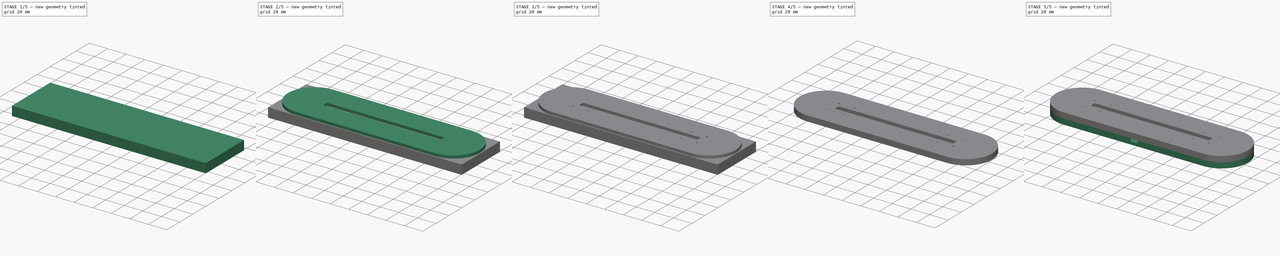
[diagram: build sequence overview — one tinted view per stage of 5, left to right]
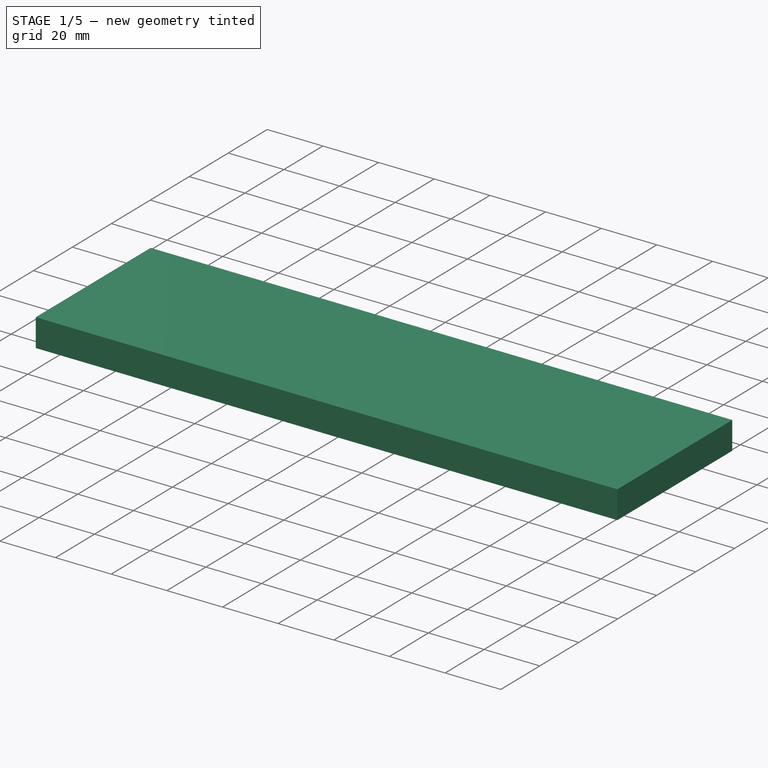
[diagram: stage 1 of 5 — iso view after this stage's code; geometry added in this stage tinted green]
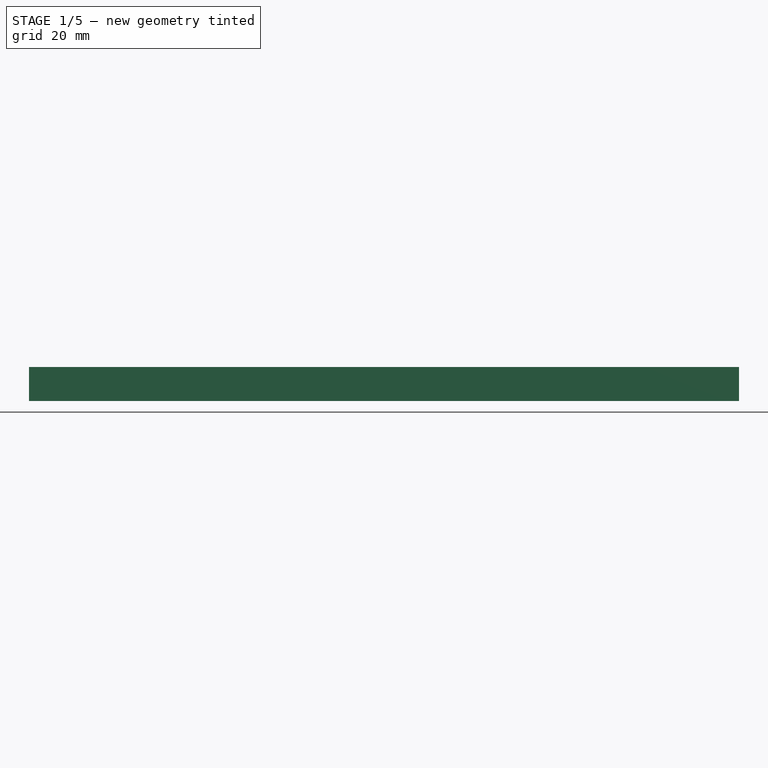
[diagram: stage 1 of 5 — front view after this stage's code; geometry added in this stage tinted green]
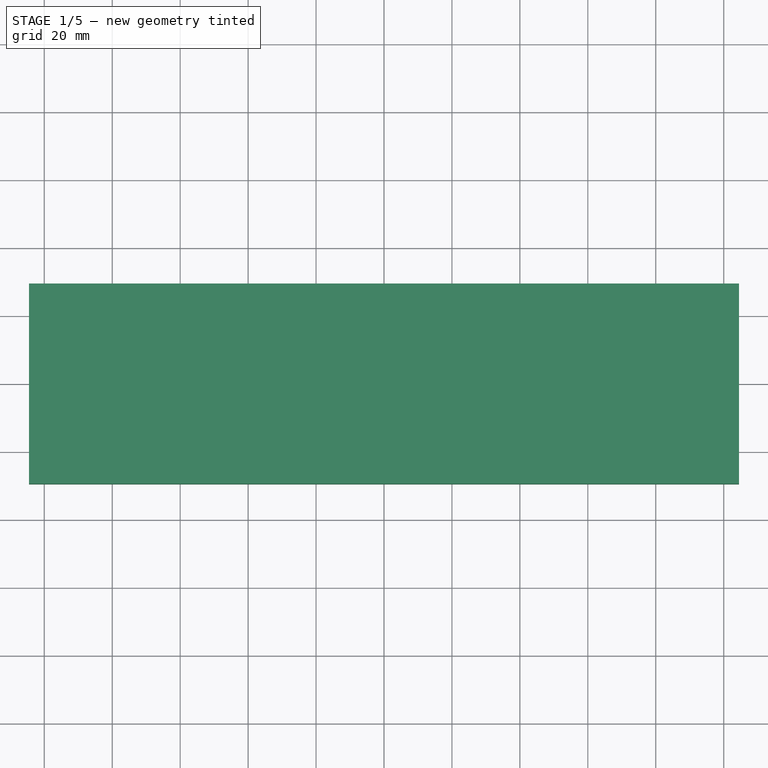
[diagram: stage 1 of 5 — top view after this stage's code; geometry added in this stage tinted green]
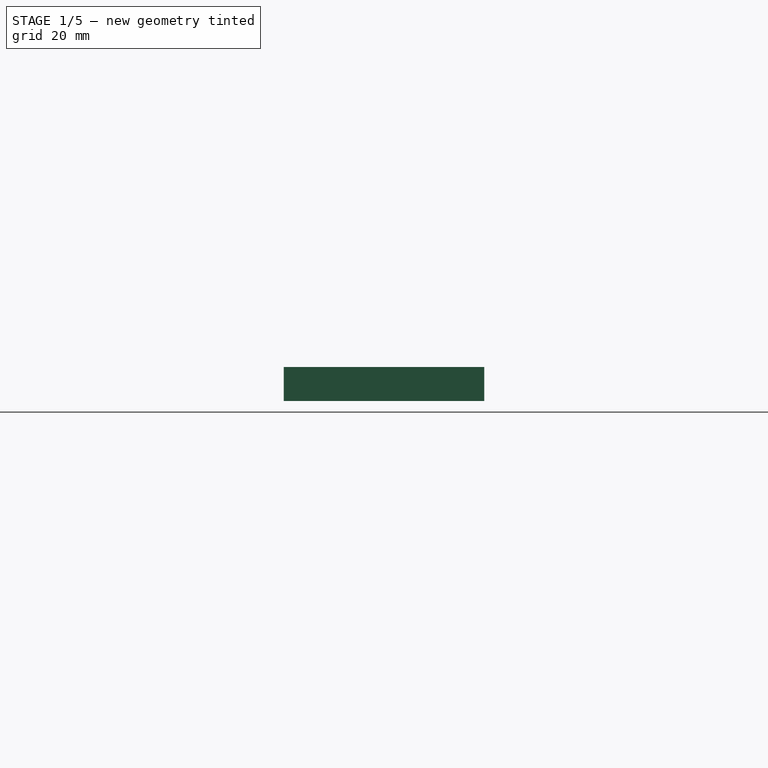
[diagram: stage 1 of 5 — right view after this stage's code; geometry added in this stage tinted green]
FCSTD DOCUMENT  (FreeCAD 0.17R13541 (Git))
Label: Acry-Base-18-Tiny-base-slots-Skate-tight-holes--lasersect
License: All rights reserved
LicenseURL: http://en.wikipedia.org/wiki/All_rights_reserved
objects: Sketcher::SketchObject×7, PartDesign::Pocket×4, Part::Feature×4, PartDesign::Pad×3, PartDesign::PolarPattern×3, Part::Box×3, Part::MultiCommon×3, Part::Cut×3, PartDesign::Body×1, App::Part×1, App::DocumentObjectGroup×1
note: 38 computed .brp shape members not serialized (recipe doc carries the construction recipe); baked Part::Feature solids carry a one-line shape summary decoded from their .brp

FEATURE [Sketcher::SketchObject] Sketch
  MapMode = 5
  Support = -> [XY_Plane001]
  sketch-geometry (5):
    g0: ArcOfCircle CenterX=-75 CenterY=0 CenterZ=0 NormalX=0 NormalY=0 NormalZ=1 AngleXU=0 Radius=28.5 StartAngle=1.5708 EndAngle=4.71239
    g1: ArcOfCircle CenterX=75 CenterY=1e-11 CenterZ=0 NormalX=0 NormalY=0 NormalZ=1 AngleXU=0 Radius=28.5 StartAngle=4.71239 EndAngle=7.85398
    g2: LineSegment StartX=-75 StartY=-28.5 StartZ=0 EndX=75 EndY=-28.5 EndZ=0
    g3: LineSegment StartX=-75 StartY=28.5 StartZ=0 EndX=75 EndY=28.5 EndZ=0
    g4: GeomPoint X=0 Y=28.5 Z=0
  constraints (12):
    c: Tangent(g0,g3) = 1.5708
    c: Tangent(g0,g2) = -1.5708
    c: Tangent(g2,g1) = -1.5708
    c: Tangent(g3,g1) = 1.5708
    c: Horizontal(g2)
    c: Equal(g0,g1)
    c: Distance(g1,g1) = 57
    c: Distance(g0,g1) = 150
    c: PointOnObject(g4,g3)
    c: Symmetric(g1,g0,g4)
    c: PointOnObject(g4,g-2)
    c: PointOnObject(g0,g-1)
FEATURE [PartDesign::Pad] Pad
  Length = 6
  Length2 = 100
  Profile = -> Sketch
  Type = 0
FEATURE [Sketcher::SketchObject] Sketch001
  MapMode = 5
  Placement = pos=(0,0,6) rot=(0,0,1;0rad)
  Support = -> [Pad]
  sketch-geometry (5):
    g0: ArcOfCircle CenterX=-62.5 CenterY=0 CenterZ=0 NormalX=0 NormalY=0 NormalZ=1 AngleXU=0 Radius=6 StartAngle=1.5708 EndAngle=4.71239
    g1: ArcOfCircle CenterX=62.5 CenterY=-1e-12 CenterZ=0 NormalX=0 NormalY=0 NormalZ=1 AngleXU=0 Radius=6 StartAngle=4.71239 EndAngle=7.85398
    g2: LineSegment StartX=-62.5 StartY=-6 StartZ=0 EndX=62.5 EndY=-6 EndZ=0
    g3: LineSegment StartX=-62.5 StartY=6 StartZ=0 EndX=62.5 EndY=6 EndZ=0
    g4: GeomPoint X=0 Y=6 Z=0
  constraints (12):
    c: Tangent(g0,g3) = 1.5708
    c: Tangent(g0,g2) = -1.5708
    c: Tangent(g2,g1) = -1.5708
    c: Tangent(g3,g1) = 1.5708
    c: Horizontal(g2)
    c: Equal(g0,g1)
    c: Distance(g3) = 125
    c: Distance(g1,g1) = 12
    c: PointOnObject(g4,g3)
    c: Symmetric(g1,g0,g4)
    c: PointOnObject(g4,g-2)
    c: PointOnObject(g0,g-1)
FEATURE [PartDesign::Pocket] Pocket
  BaseFeature = -> Pad
  Length = 3
  Length2 = 100
  Profile = -> Sketch001
  Type = 0
FEATURE [PartDesign::Body] Body
  Group = -> [Sketch,Pad,Sketch001,Pocket,Sketch002,Pocket001,Sketch003,Pocket002,Sketch004,Pad001,Sketch005,Pad002,Sketch006,Pocket003,PolarPattern,PolarPattern001,PolarPattern002]
  Origin = -> Origin001
  Tip = -> PolarPattern002
FEATURE [App::Part] Part
  Group = -> [Body]
  License = CC BY 3.0
  LicenseURL = http://creativecommons.org/licenses/by/3.0/
  Origin = -> Origin
FEATURE [Part::Box] box_bottom_half_0
  AttacherType = Attacher::AttachEngine3D
  Height = 7
  Length = 209
  Placement = pos=(-104.5,-29.5,-1) rot=(0,0,1;0rad)
  Width = 59
FEATURE [Part::Box] box_bottom_half_2
  AttacherType = Attacher::AttachEngine3D
  Height = 4
  Length = 209
  Placement = pos=(-104.5,-29.5,5) rot=(0,0,1;0rad)
  Width = 59
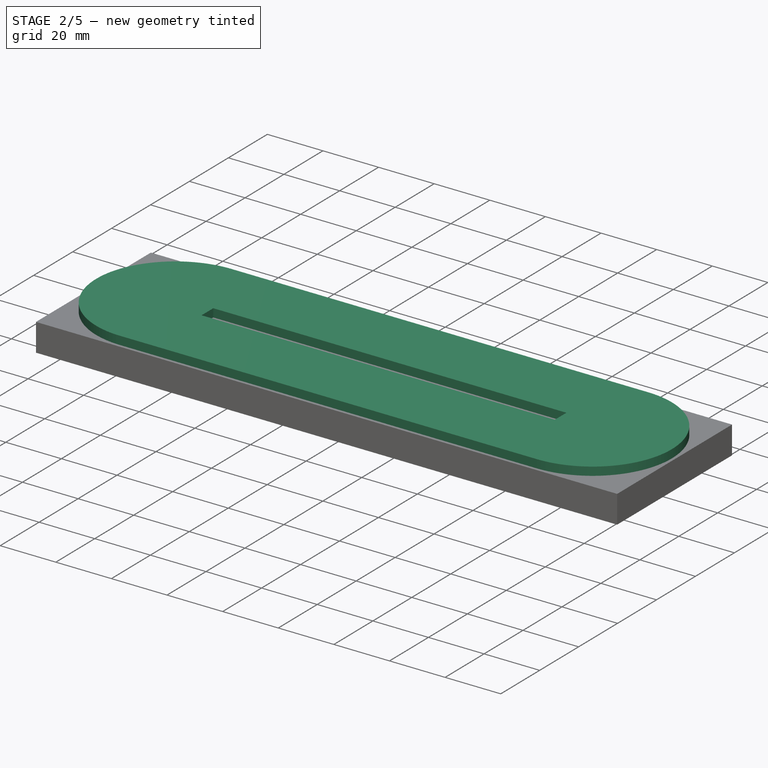
[diagram: stage 2 of 5 — iso view after this stage's code; geometry added in this stage tinted green]
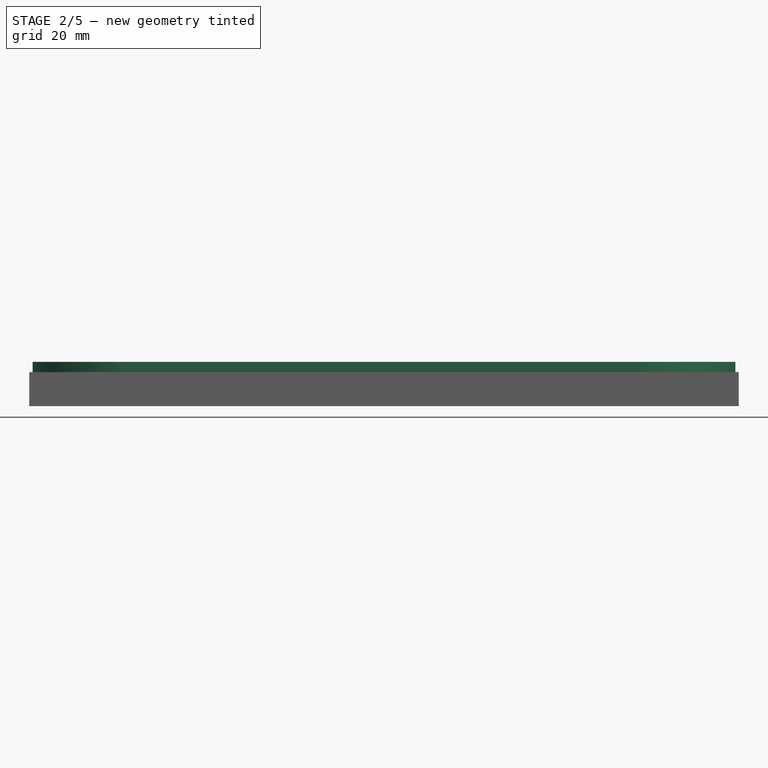
[diagram: stage 2 of 5 — front view after this stage's code; geometry added in this stage tinted green]
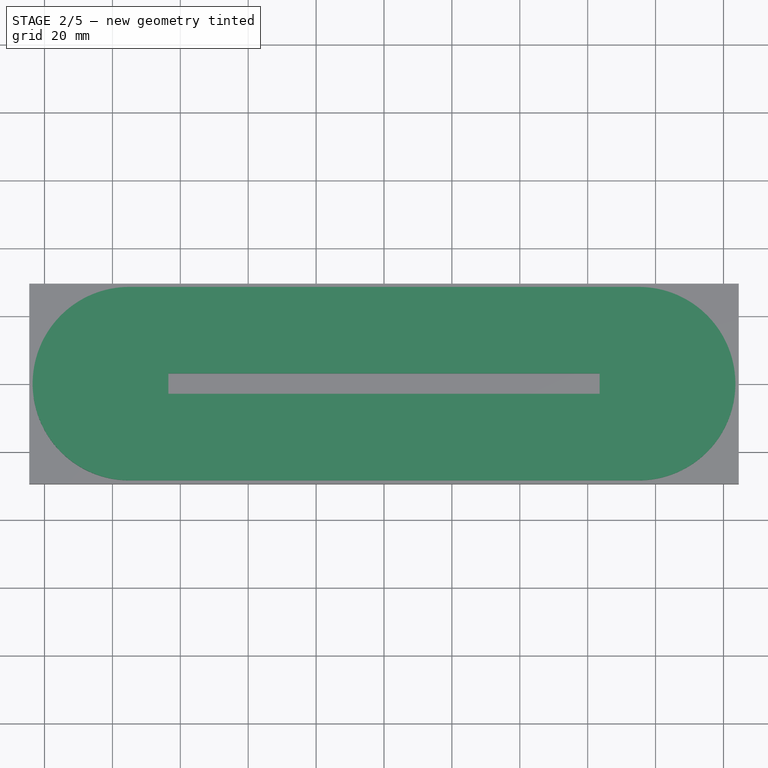
[diagram: stage 2 of 5 — top view after this stage's code; geometry added in this stage tinted green]
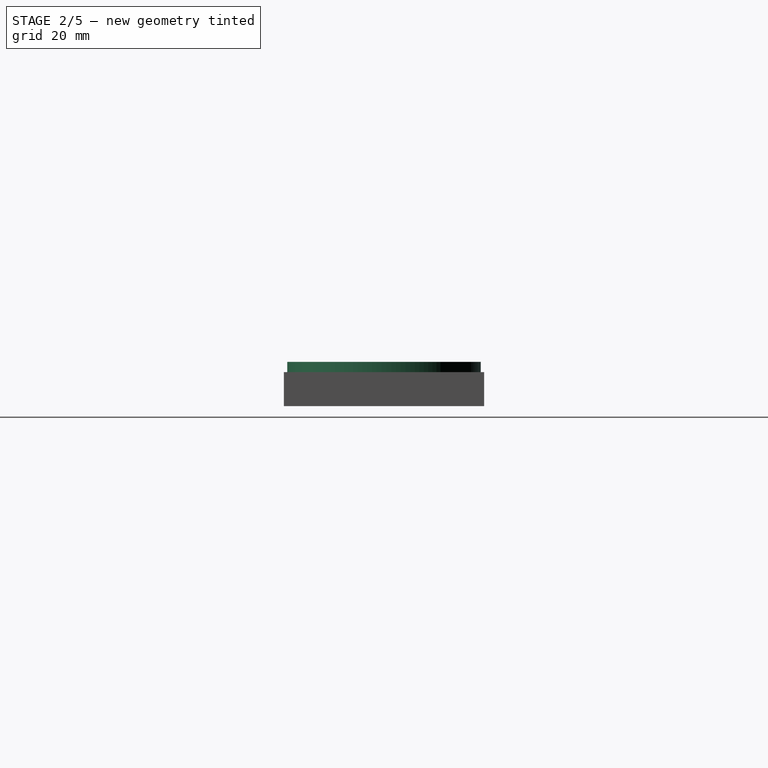
[diagram: stage 2 of 5 — right view after this stage's code; geometry added in this stage tinted green]
FEATURE [Sketcher::SketchObject] Sketch002
  ExternalGeometry = -> [Pocket]
  MapMode = 5
  Placement = pos=(0,0,6) rot=(0,0,1;0rad)
  Support = -> [Pocket]
  sketch-geometry (5):
    g0: LineSegment StartX=-9.2 StartY=-6 StartZ=0 EndX=9.2 EndY=-6 EndZ=0
    g1: LineSegment StartX=9.2 StartY=-6 StartZ=0 EndX=9.2 EndY=-26.85 EndZ=0
    g2: LineSegment StartX=9.2 StartY=-26.85 StartZ=0 EndX=-9.2 EndY=-26.85 EndZ=0
    g3: LineSegment StartX=-9.2 StartY=-26.85 StartZ=0 EndX=-9.2 EndY=-6 EndZ=0
    g4: GeomPoint X=0 Y=-6 Z=0
  constraints (14):
    c: Coincident(g0,g1)
    c: Coincident(g1,g2)
    c: Coincident(g2,g3)
    c: Coincident(g3,g0)
    c: Horizontal(g0)
    c: Horizontal(g2)
    c: Vertical(g1)
    c: Vertical(g3)
    c: Distance(g0) = 18.4
    c: Distance(g1) = 20.85
    c: PointOnObject(g4,g0)
    c: Symmetric(g0,g0,g4)
    c: PointOnObject(g4,g-2)
    c: Distance(g2,g-3) = 1.65
FEATURE [PartDesign::Pocket] Pocket001
  BaseFeature = -> Pocket
  Length = 3
  Length2 = 100
  Profile = -> Sketch002
  Type = 0
FEATURE [Sketcher::SketchObject] Sketch003
  ExternalGeometry = -> [Pocket001]
  MapMode = 5
  Placement = pos=(0,0,6) rot=(0,0,1;0rad)
  Support = -> [Pocket001]
  sketch-geometry (5):
    g0: LineSegment StartX=-4.275 StartY=-26.85 StartZ=0 EndX=4.275 EndY=-26.85 EndZ=0
    g1: LineSegment StartX=4.275 StartY=-26.85 StartZ=0 EndX=4.275 EndY=-28.5 EndZ=0
    g2: LineSegment StartX=4.275 StartY=-28.5 StartZ=0 EndX=-4.275 EndY=-28.5 EndZ=0
    g3: LineSegment StartX=-4.275 StartY=-28.5 StartZ=0 EndX=-4.275 EndY=-26.85 EndZ=0
    g4: GeomPoint X=0 Y=-26.85 Z=0
  constraints (14):
    c: Coincident(g0,g1)
    c: Coincident(g1,g2)
    c: Coincident(g2,g3)
    c: Coincident(g3,g0)
    c: Horizontal(g0)
    c: Horizontal(g2)
    c: Vertical(g1)
    c: Vertical(g3)
    c: PointOnObject(g0,g-3)
    c: PointOnObject(g1,g-4)
    c: Distance(g0) = 8.55
    c: PointOnObject(g4,g0)
    c: Symmetric(g0,g0,g4)
    c: PointOnObject(g4,g-2)
FEATURE [PartDesign::Pocket] Pocket002
  BaseFeature = -> Pocket001
  Length = 3
  Length2 = 100
  Profile = -> Sketch003
  Type = 0
FEATURE [Sketcher::SketchObject] Sketch004
  ExternalGeometry = -> [Pocket002]
  MapMode = 5
  Placement = pos=(0,0,6) rot=(0,0,1;0rad)
  Support = -> [Pocket002]
  sketch-geometry (8):
    g0: ArcOfCircle CenterX=-75 CenterY=0 CenterZ=0 NormalX=0 NormalY=0 NormalZ=1 AngleXU=0 Radius=28.5 StartAngle=1.5708 EndAngle=4.71239
    g1: ArcOfCircle CenterX=75 CenterY=0 CenterZ=0 NormalX=0 NormalY=0 NormalZ=1 AngleXU=0 Radius=28.5 StartAngle=4.71239 EndAngle=7.85398
    g2: LineSegment StartX=-75 StartY=-28.5 StartZ=0 EndX=75 EndY=-28.5 EndZ=0
    g3: LineSegment StartX=-75 StartY=28.5 StartZ=0 EndX=75 EndY=28.5 EndZ=0
    g4: ArcOfCircle CenterX=-62.5 CenterY=-1e-12 CenterZ=0 NormalX=0 NormalY=0 NormalZ=1 AngleXU=0 Radius=6 StartAngle=1.5708 EndAngle=4.71239
    g5: ArcOfCircle CenterX=62.5 CenterY=-1e-12 CenterZ=0 NormalX=0 NormalY=0 NormalZ=1 AngleXU=0 Radius=6 StartAngle=4.71239 EndAngle=7.85398
    g6: LineSegment StartX=-62.5 StartY=-6 StartZ=0 EndX=62.5 EndY=-6 EndZ=0
    g7: LineSegment StartX=-62.5 StartY=6 StartZ=0 EndX=62.5 EndY=6 EndZ=0
  constraints (17):
    c: Tangent(g0,g3) = 1.5708
    c: Tangent(g0,g2) = -1.5708
    c: Tangent(g2,g1) = -1.5708
    c: Tangent(g3,g1) = 1.5708
    c: Horizontal(g2)
    c: Equal(g0,g1)
    c: Equal(g0,g-3)
    c: Coincident(g0,g-3)
    c: Coincident(g1,g-4)
    c: Tangent(g4,g7) = 1.5708
    c: Tangent(g4,g6) = -1.5708
    c: Tangent(g6,g5) = -1.5708
    c: Tangent(g7,g5) = 1.5708
    c: Horizontal(g6)
    c: Equal(g4,g5)
    c: Coincident(g5,g-6)
    c: Coincident(g4,g-5)
FEATURE [PartDesign::Pad] Pad001
  BaseFeature = -> Pocket002
  Length = 3
  Length2 = 100
  Profile = -> Sketch004
  Type = 0
FEATURE [Sketcher::SketchObject] Sketch005
  ExternalGeometry = -> [Pad001]
  MapMode = 5
  Placement = pos=(0,0,9) rot=(0,0,1;0rad)
  Support = -> [Pad001]
  sketch-geometry (10):
    g0: ArcOfCircle CenterX=-75 CenterY=0 CenterZ=0 NormalX=0 NormalY=0 NormalZ=1 AngleXU=0 Radius=28.5 StartAngle=1.5708 EndAngle=4.71239
    g1: ArcOfCircle CenterX=75 CenterY=0 CenterZ=0 NormalX=0 NormalY=0 NormalZ=1 AngleXU=0 Radius=28.5 StartAngle=4.71239 EndAngle=7.85398
    g2: LineSegment StartX=-75 StartY=-28.5 StartZ=0 EndX=75 EndY=-28.5 EndZ=0
    g3: LineSegment StartX=-75 StartY=28.5 StartZ=0 EndX=75 EndY=28.5 EndZ=0
    g4: LineSegment StartX=-63.5 StartY=3 StartZ=0 EndX=63.5 EndY=3 EndZ=0
    g5: LineSegment StartX=63.5 StartY=3 StartZ=0 EndX=63.5 EndY=-3 EndZ=0
    g6: LineSegment StartX=63.5 StartY=-3 StartZ=0 EndX=-63.5 EndY=-3 EndZ=0
    g7: LineSegment StartX=-63.5 StartY=-3 StartZ=0 EndX=-63.5 EndY=3 EndZ=0
    g8: GeomPoint X=-63.5 Y=0 Z=0
    g9: GeomPoint X=0 Y=3 Z=0
  constraints (24):
    c: Tangent(g0,g3) = 1.5708
    c: Tangent(g0,g2) = -1.5708
    c: Tangent(g2,g1) = -1.5708
    c: Tangent(g3,g1) = 1.5708
    c: Horizontal(g2)
    c: Equal(g0,g1)
    c: Coincident(g0,g-3)
    c: Coincident(g1,g-4)
    c: Coincident(g4,g5)
    c: Coincident(g5,g6)
    c: Coincident(g6,g7)
    c: Coincident(g7,g4)
    c: Horizontal(g4)
    c: Horizontal(g6)
    c: Vertical(g5)
    c: Vertical(g7)
    c: Distance(g4) = 127
    c: Distance(g5) = 6
    c: PointOnObject(g8,g7)
    c: PointOnObject(g9,g4)
    c: Symmetric(g4,g4,g9)
    c: Symmetric(g4,g6,g8)
    c: PointOnObject(g9,g-2)
    c: PointOnObject(g8,g-1)
FEATURE [PartDesign::Pad] Pad002
  BaseFeature = -> Pad001
  Length = 3
  Length2 = 100
  Profile = -> Sketch005
  Type = 0
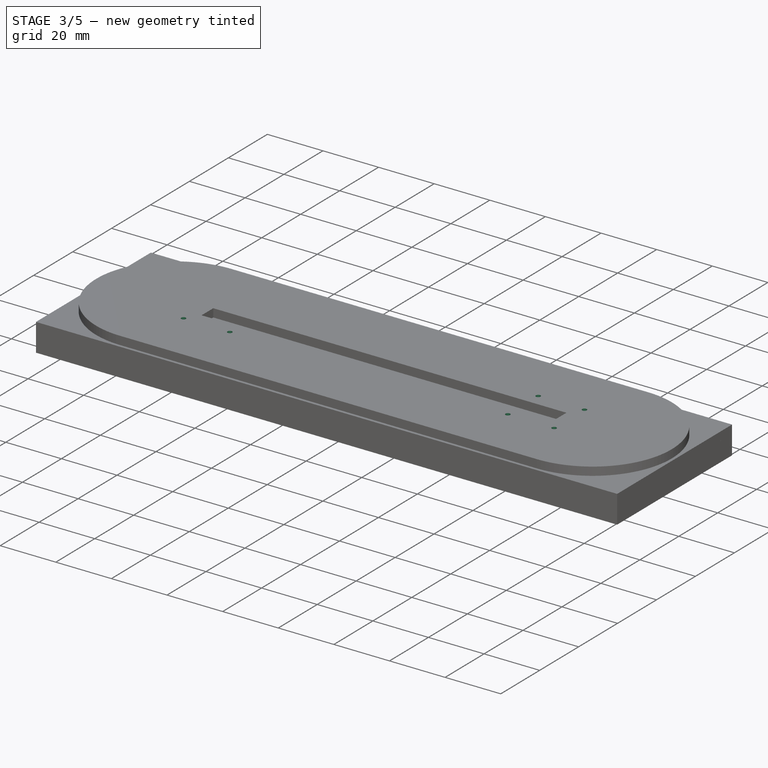
[diagram: stage 3 of 5 — iso view after this stage's code; geometry added in this stage tinted green]
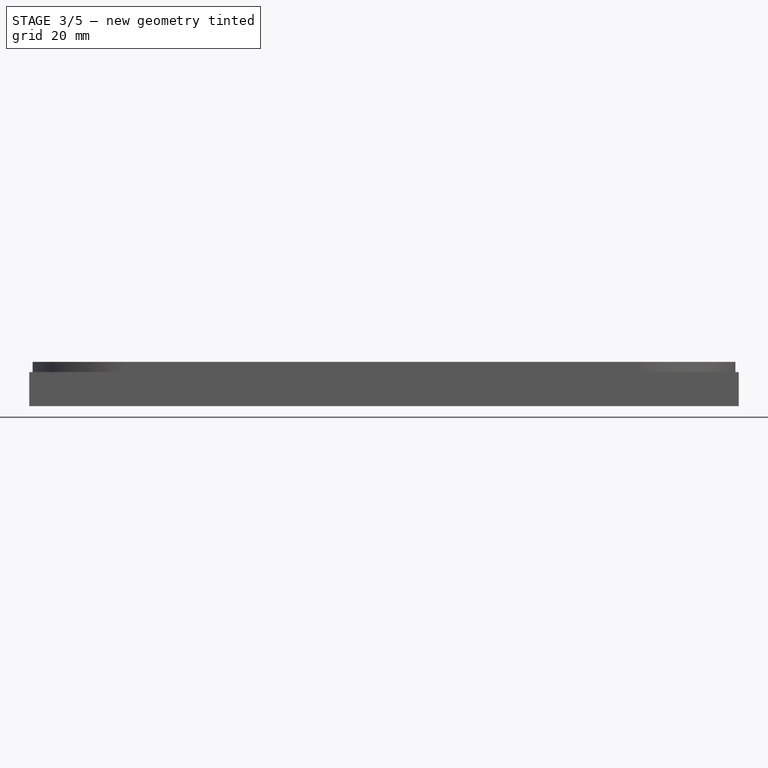
[diagram: stage 3 of 5 — front view after this stage's code; geometry added in this stage tinted green]
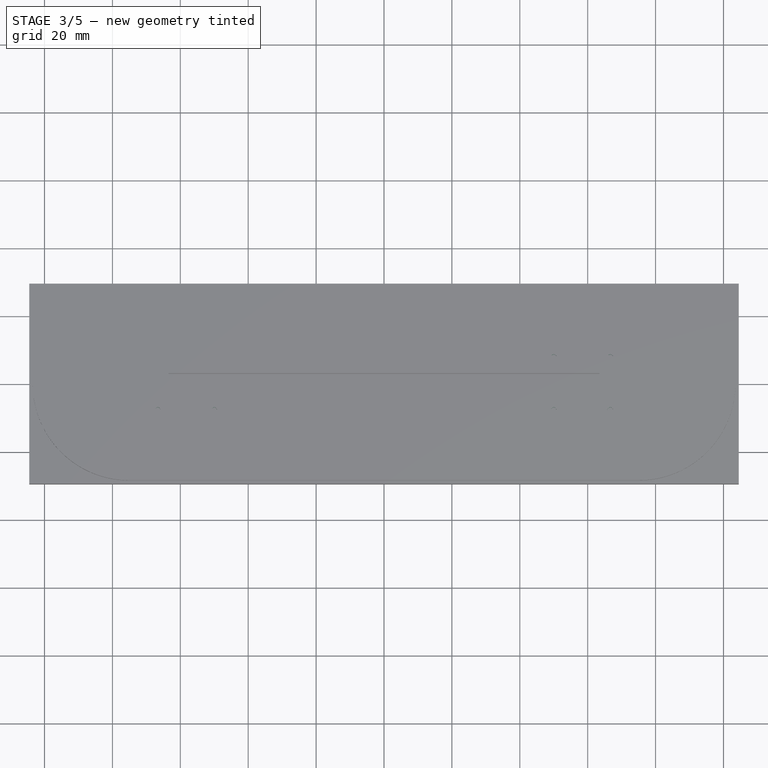
[diagram: stage 3 of 5 — top view after this stage's code; geometry added in this stage tinted green]
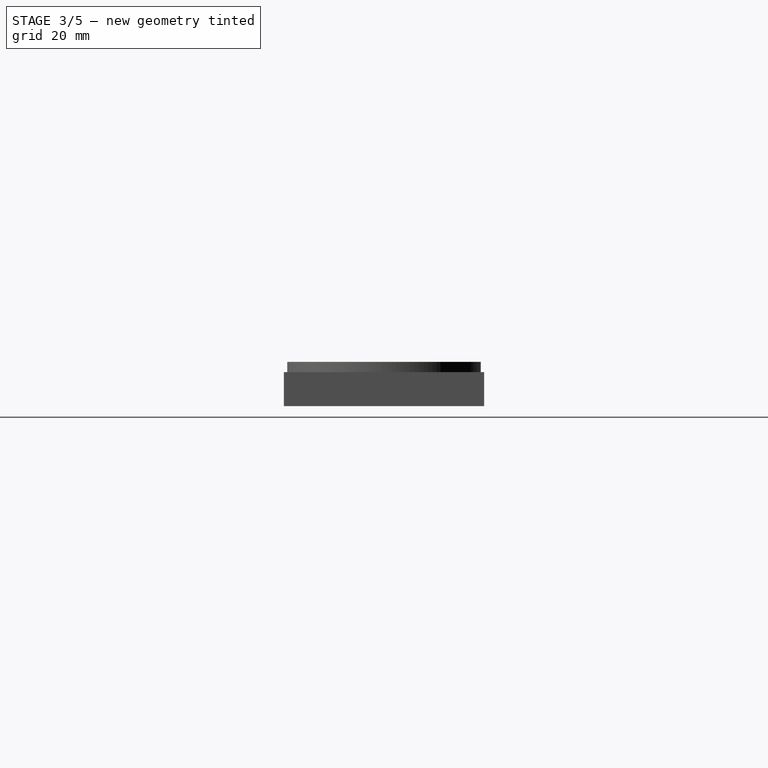
[diagram: stage 3 of 5 — right view after this stage's code; geometry added in this stage tinted green]
FEATURE [Sketcher::SketchObject] Sketch006
  MapMode = 5
  Placement = pos=(0,0,12) rot=(0,0,1;0rad)
  Support = -> [Pad002]
  sketch-geometry (3):
    g0: Circle CenterX=-66.64 CenterY=-7.79 CenterZ=0 NormalX=0 NormalY=0 NormalZ=1 AngleXU=0 Radius=0.825
    g1: GeomPoint X=-65.815 Y=-7.7979 Z=0
    g2: Circle CenterX=-50 CenterY=-7.79 CenterZ=0 NormalX=0 NormalY=0 NormalZ=1 AngleXU=0 Radius=0.825
  constraints (6):
    c: Distance(g0,g1) = 0.825
    c: Distance(g0,g-1) = 7.79
    c: Distance(g0,g-2) = 66.64
    c: Equal(g0,g2)
    c: Distance(g2,g-1) = 7.79
    c: Distance(g2,g-2) = 50
FEATURE [PartDesign::Pocket] Pocket003
  BaseFeature = -> Pad002
  Length = 5
  Length2 = 100
  Profile = -> Sketch006
  Type = 1
FEATURE [PartDesign::PolarPattern] PolarPattern
  Angle = 360
  Axis = -> Sketch006 [N_Axis]
  BaseFeature = -> Pocket003
  Occurrences = 2
  Originals = -> [Pocket003]
FEATURE [PartDesign::PolarPattern] PolarPattern001
  Angle = 360
  Axis = -> Y_Axis001
  BaseFeature = -> PolarPattern
  Occurrences = 2
  Originals = -> [Pocket003]
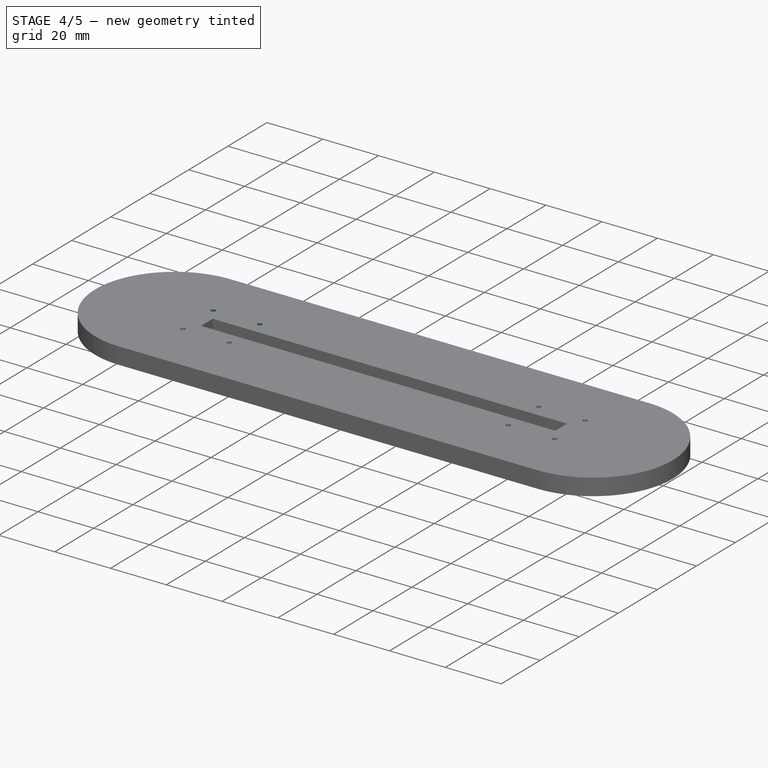
[diagram: stage 4 of 5 — iso view after this stage's code; geometry added in this stage tinted green]
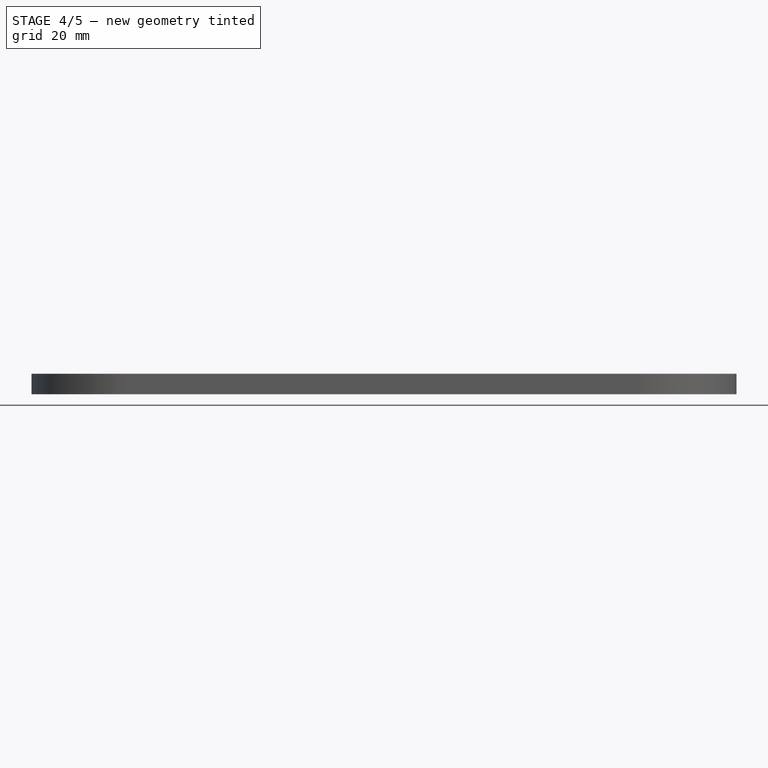
[diagram: stage 4 of 5 — front view after this stage's code; geometry added in this stage tinted green]
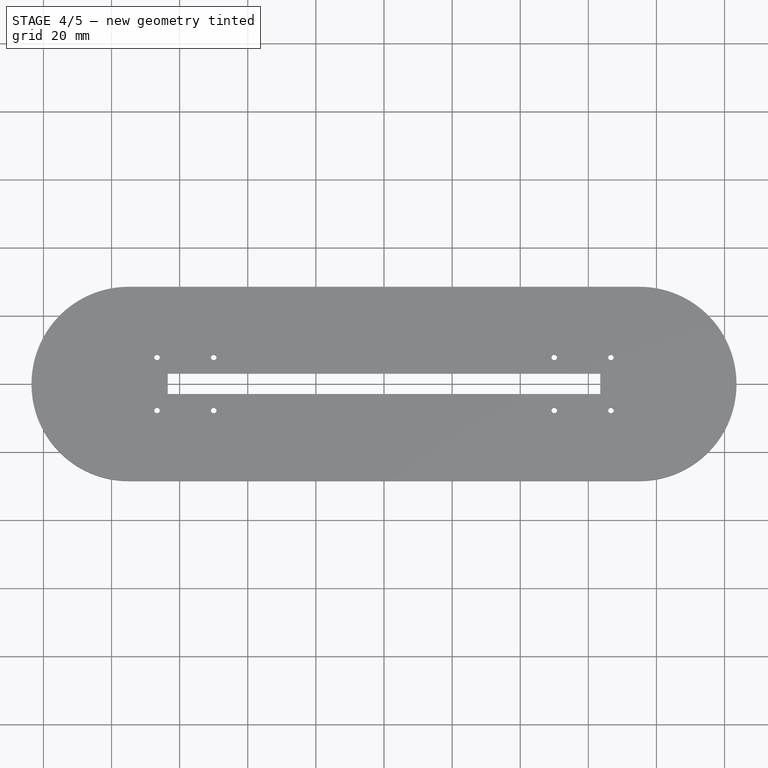
[diagram: stage 4 of 5 — top view after this stage's code; geometry added in this stage tinted green]
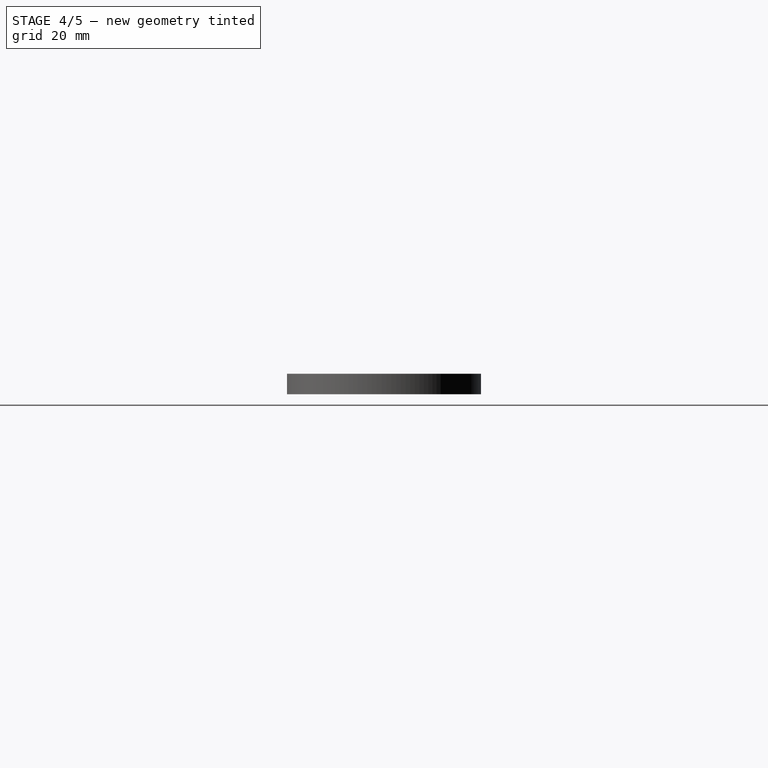
[diagram: stage 4 of 5 — right view after this stage's code; geometry added in this stage tinted green]
FEATURE [PartDesign::PolarPattern] PolarPattern002
  Angle = 360
  Axis = -> X_Axis001
  BaseFeature = -> PolarPattern001
  Occurrences = 2
  Originals = -> [Pocket003]
  Reversed = true
FEATURE [Part::Cut] top_half_0
  Base = -> Body
  Tool = -> box_bottom_half_0
FEATURE [Part::MultiCommon] bottom_half_2
  Shapes = -> [top_half_0,box_bottom_half_2]
FEATURE [Part::Cut] top_half_2
  Base = -> top_half_0
  Tool = -> box_bottom_half_2
FEATURE [Part::Feature] MyLayer
  Placement = pos=(0,0,-1.5) rot=(0,0,1;0rad)
  shape: bbox 207 x 57 x 3e-07 mm, 0 faces, 0 solids (baked)
FEATURE [Part::Feature] MyLayer001
  Placement = pos=(212,0,-4.5) rot=(0,0,1;0rad)
  shape: bbox 207 x 57 x 3e-07 mm, 0 faces, 0 solids (baked)
FEATURE [Part::Feature] MyLayer002
  Placement = pos=(0,62,-7.5) rot=(0,0,1;0rad)
  shape: bbox 207 x 57 x 3e-07 mm, 0 faces, 0 solids (baked)
FEATURE [Part::Feature] MyLayer003
  Placement = pos=(212,62,-10.5) rot=(0,0,1;0rad)
  shape: bbox 207 x 57 x 3e-07 mm, 0 faces, 0 solids (baked)
FEATURE [App::DocumentObjectGroup] Body_Slices
  Group = -> [MyLayer,MyLayer001,MyLayer002,MyLayer003]
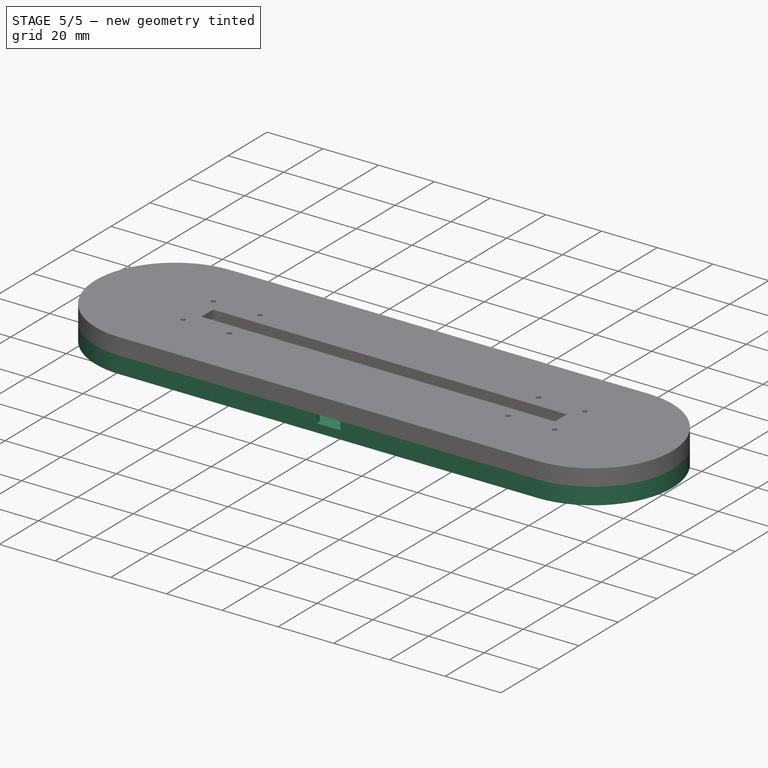
[diagram: stage 5 of 5 — iso view after this stage's code; geometry added in this stage tinted green]
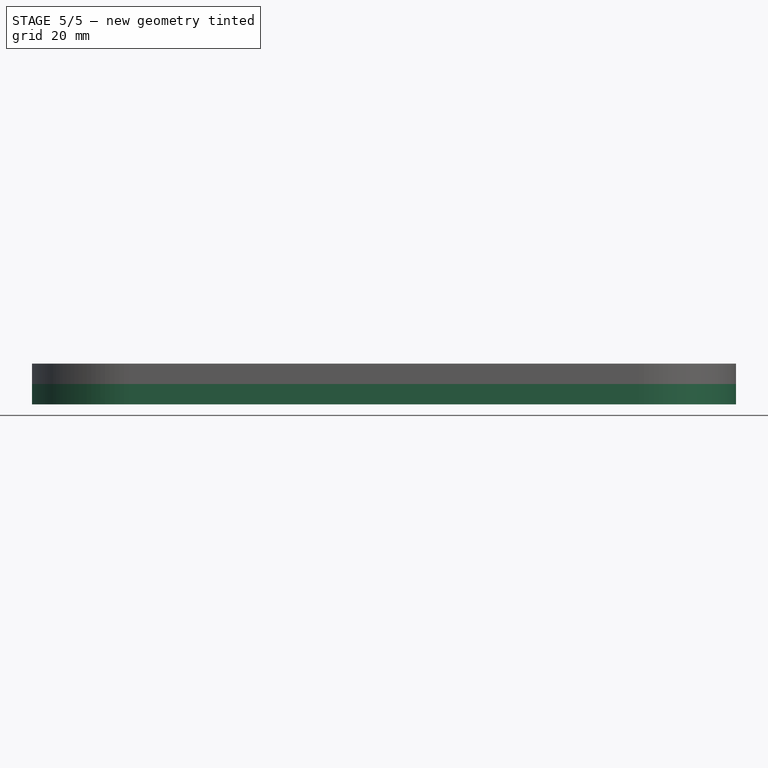
[diagram: stage 5 of 5 — front view after this stage's code; geometry added in this stage tinted green]
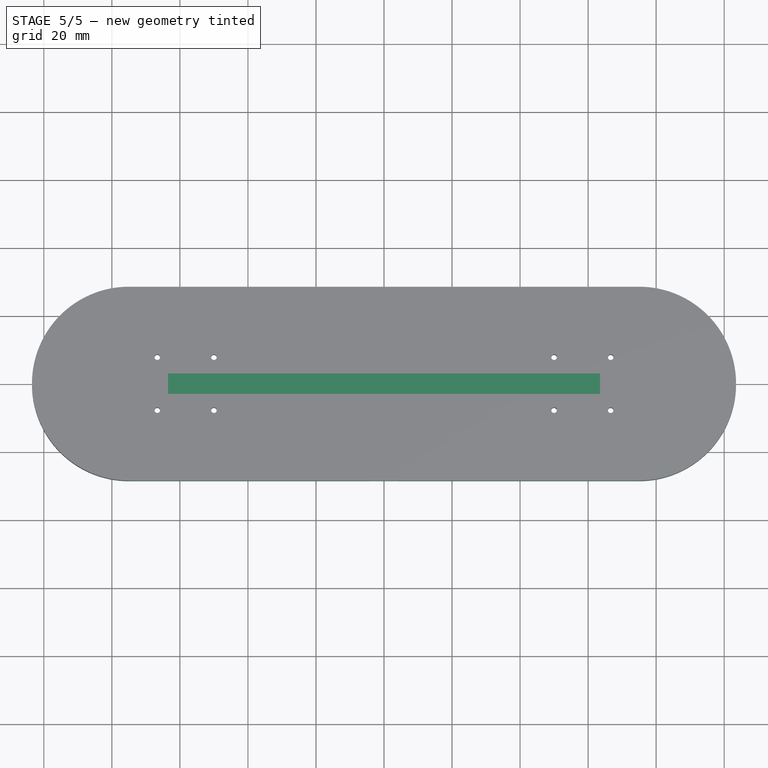
[diagram: stage 5 of 5 — top view after this stage's code; geometry added in this stage tinted green]
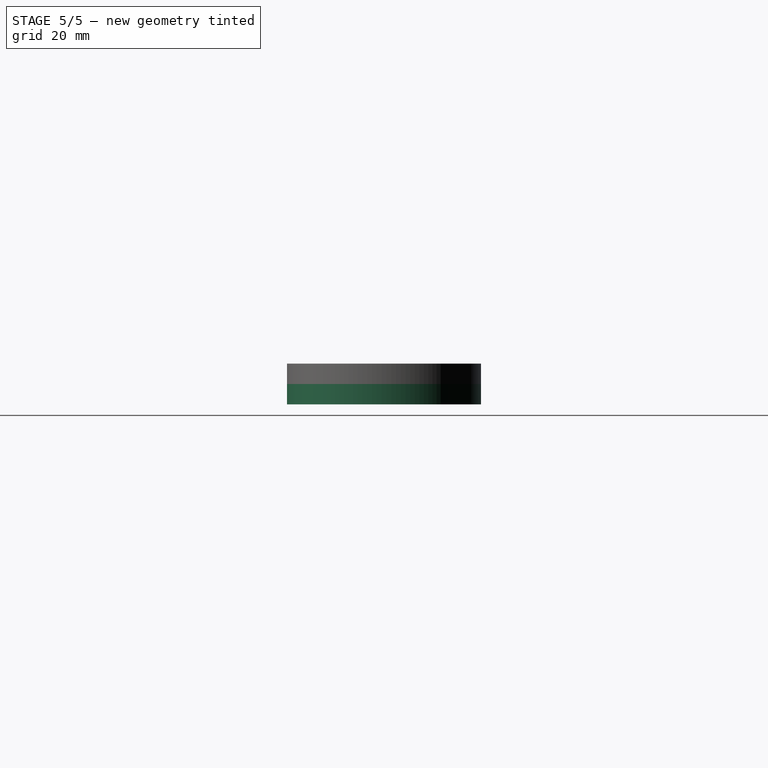
[diagram: stage 5 of 5 — right view after this stage's code; geometry added in this stage tinted green]
FEATURE [Part::MultiCommon] bottom_half_0
  Shapes = -> [Body,box_bottom_half_0]
FEATURE [Part::Box] box_bottom_half_1
  AttacherType = Attacher::AttachEngine3D
  Height = 4
  Length = 209
  Placement = pos=(-104.5,-29.5,-1) rot=(0,0,1;0rad)
  Width = 59
FEATURE [Part::MultiCommon] bottom_half_1
  Shapes = -> [bottom_half_0,box_bottom_half_1]
FEATURE [Part::Cut] top_half_1
  Base = -> bottom_half_0
  Tool = -> box_bottom_half_1
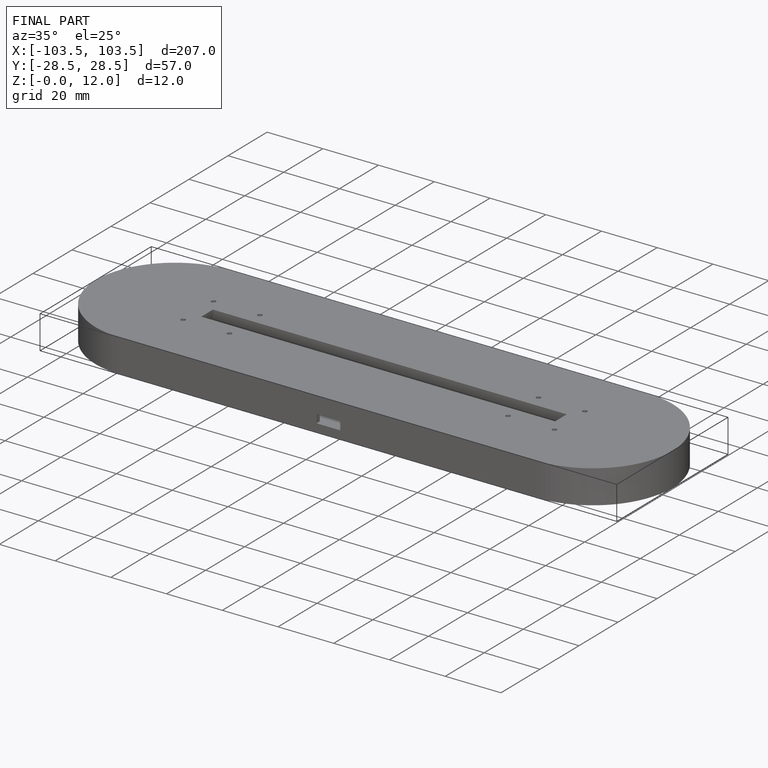
[diagram: finished part — iso view with bounding-box wireframe]
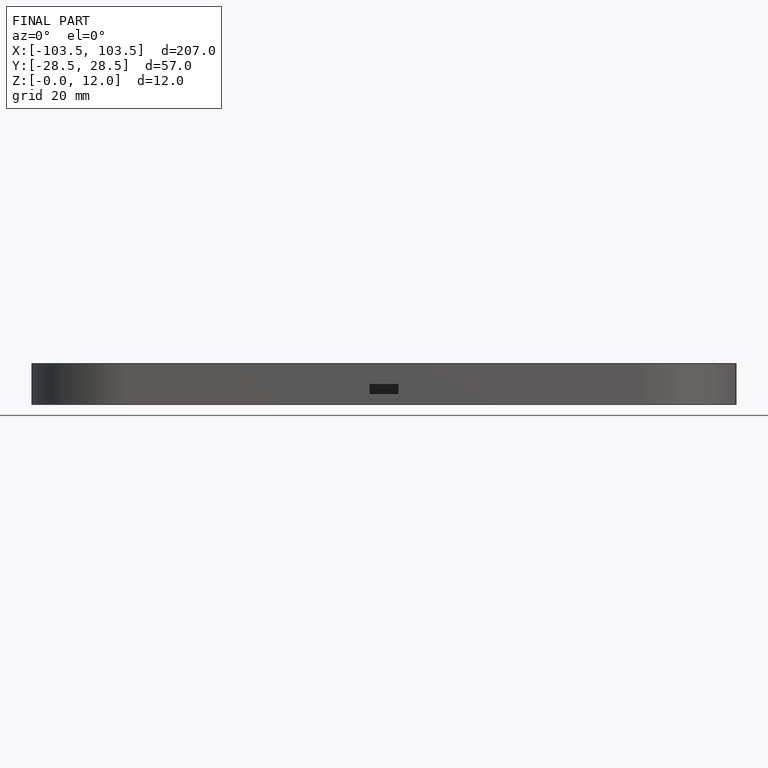
[diagram: finished part — front view with bounding-box wireframe]
